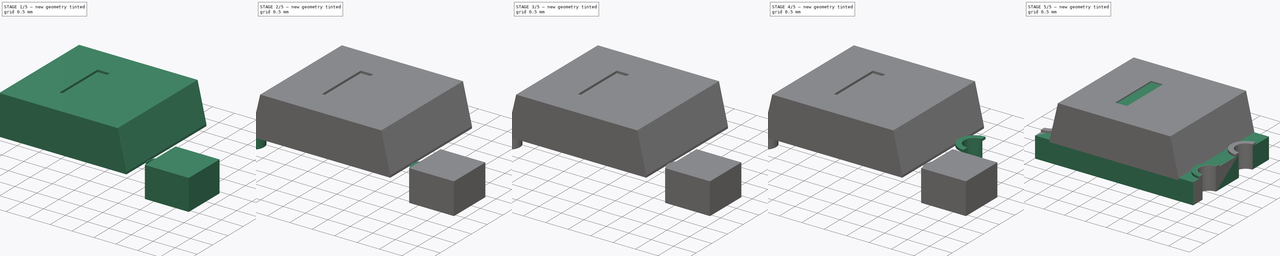
[diagram: build sequence overview — one tinted view per stage of 5, left to right]
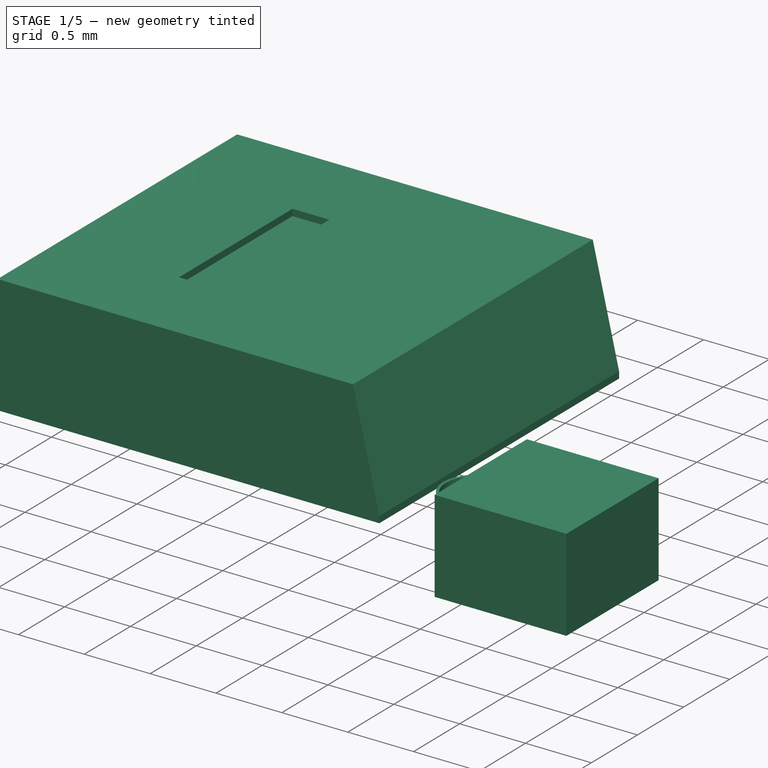
[diagram: stage 1 of 5 — iso view after this stage's code; geometry added in this stage tinted green]
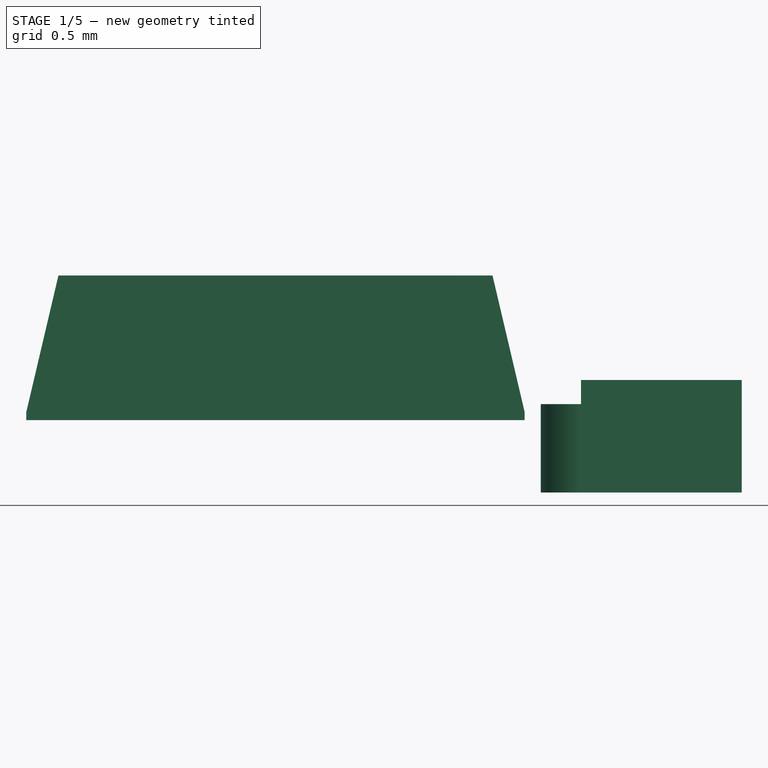
[diagram: stage 1 of 5 — front view after this stage's code; geometry added in this stage tinted green]
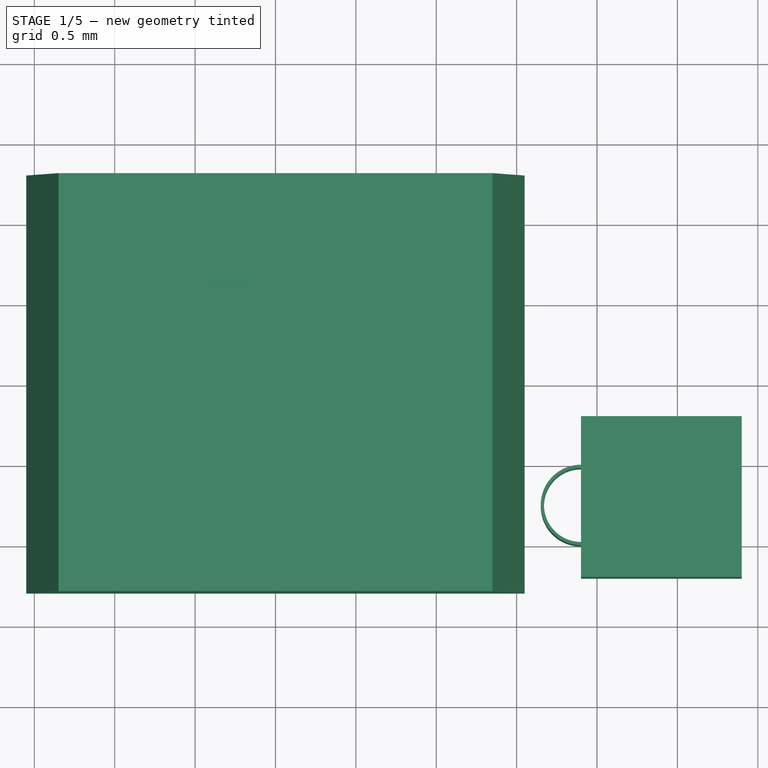
[diagram: stage 1 of 5 — top view after this stage's code; geometry added in this stage tinted green]
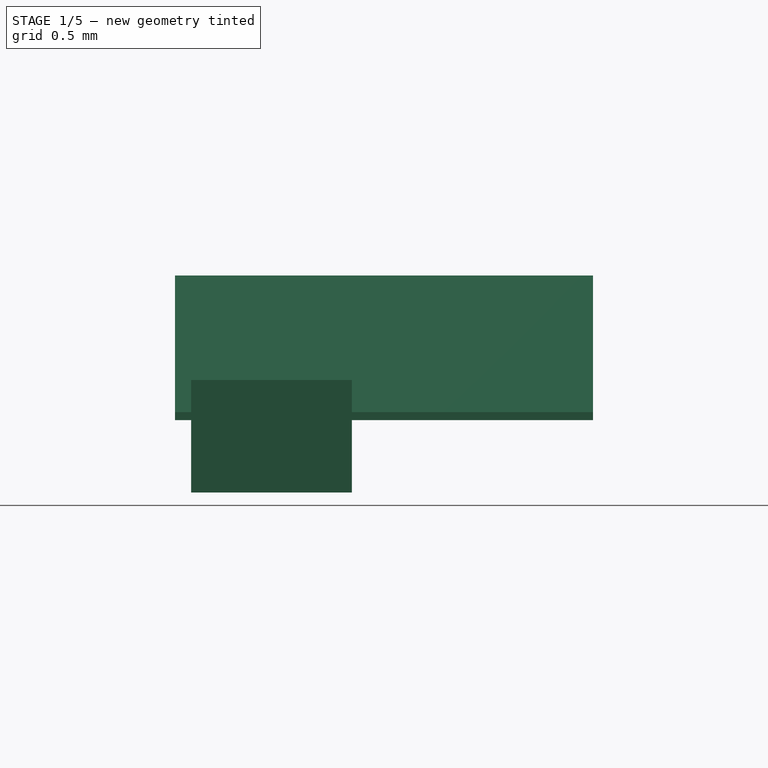
[diagram: stage 1 of 5 — right view after this stage's code; geometry added in this stage tinted green]
FCSTD DOCUMENT  (FreeCAD 0.17R11223 (Git))
Label: AmbientLightSensor_AMS_TSL2550_SMD_03
License: All rights reserved
LicenseURL: http://en.wikipedia.org/wiki/All_rights_reserved
objects: Part::Cylinder×16, Part::Cut×13, Part::Box×7, Part::MultiFuse×4, Part::Chamfer×2, Sketcher::SketchObject×1, PartDesign::Pad×1, PartDesign::Body×1
note: 46 computed .brp shape members not serialized (recipe doc carries the construction recipe); baked Part::Feature solids carry a one-line shape summary decoded from their .brp

FEATURE [PartDesign::Body] Body
  Group = -> [Sketch,Pad]
  Origin = -> BodyOrigin
  Tip = -> Pad
FEATURE [Part::Box] Box  label="Kub"
  AttacherType = Attacher::AttachEngine3D
  Height = 0.9
  Length = 3.1
  Placement = pos=(-1.55,-1.3,0.45) rot=(0,0,1;0rad)
  Width = 2.6
FEATURE [Part::Chamfer] Chamfer
  Base = -> Box
  Edges = 1 edges: [Edge6 r1=0.85 r2=0.2]
FEATURE [Part::Chamfer] Chamfer001
  Base = -> Chamfer
  Edges = 1 edges: [Edge15 r1=0.2 r2=0.85]
FEATURE [Part::Box] Box001  label="Kub001"
  AttacherType = Attacher::AttachEngine3D
  Height = 0.2
  Length = 0.28
  Placement = pos=(-0.44,-0.63,1.3) rot=(0,0,1;0rad)
  Width = 1.23
FEATURE [Part::Cylinder] Cylinder012
  Angle = 360
  AttacherType = Attacher::AttachEngine3D
  Height = 0.55
  Placement = pos=(1.9,-0.75,0) rot=(0,0,1;0rad)
  Radius = 0.25
FEATURE [Part::Cylinder] Cylinder013
  Angle = 360
  AttacherType = Attacher::AttachEngine3D
  Height = 0.55
  Placement = pos=(1.9,-0.75,0) rot=(0,0,1;0rad)
  Radius = 0.23
FEATURE [Part::Cut] Cut011
  Base = -> Cylinder012
  Tool = -> Cylinder013
FEATURE [Part::Box] Box006  label="Kub006"
  AttacherType = Attacher::AttachEngine3D
  Height = 0.7
  Length = 1
  Placement = pos=(1.9,-1.2,0) rot=(0,0,1;0rad)
  Width = 1
FEATURE [Part::Cut] Cut
  Base = -> Chamfer001
  Tool = -> Box001
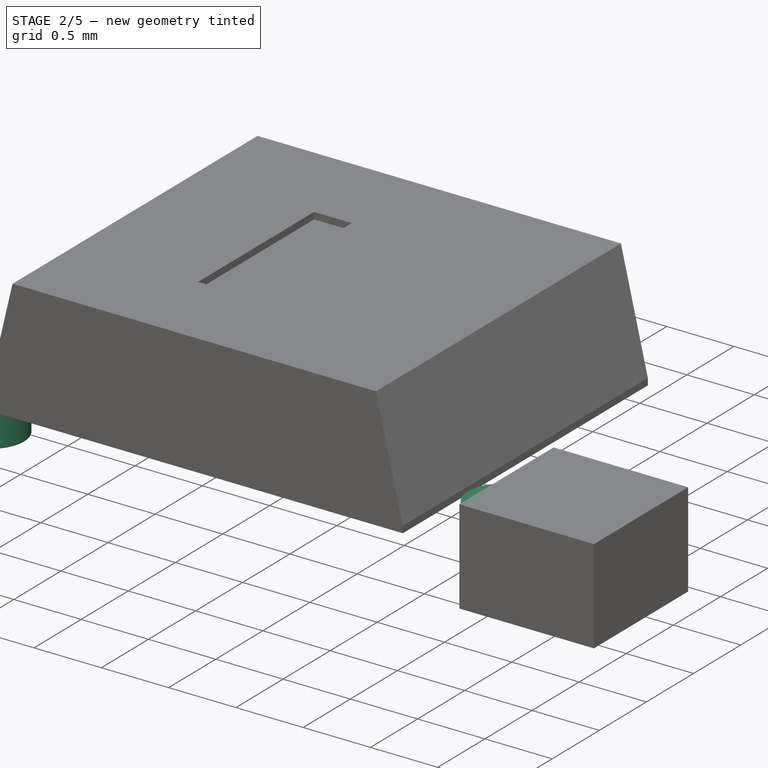
[diagram: stage 2 of 5 — iso view after this stage's code; geometry added in this stage tinted green]
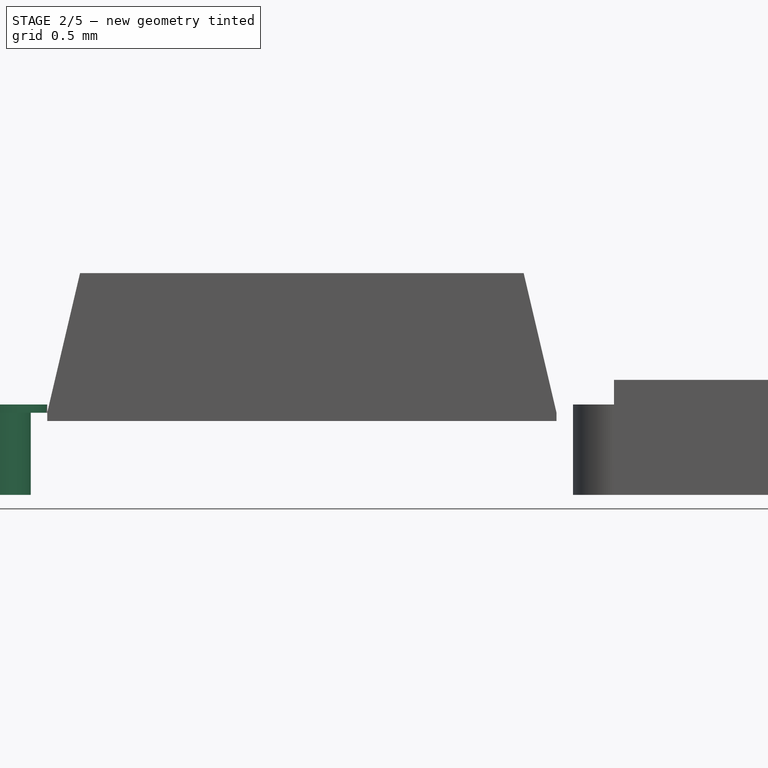
[diagram: stage 2 of 5 — front view after this stage's code; geometry added in this stage tinted green]
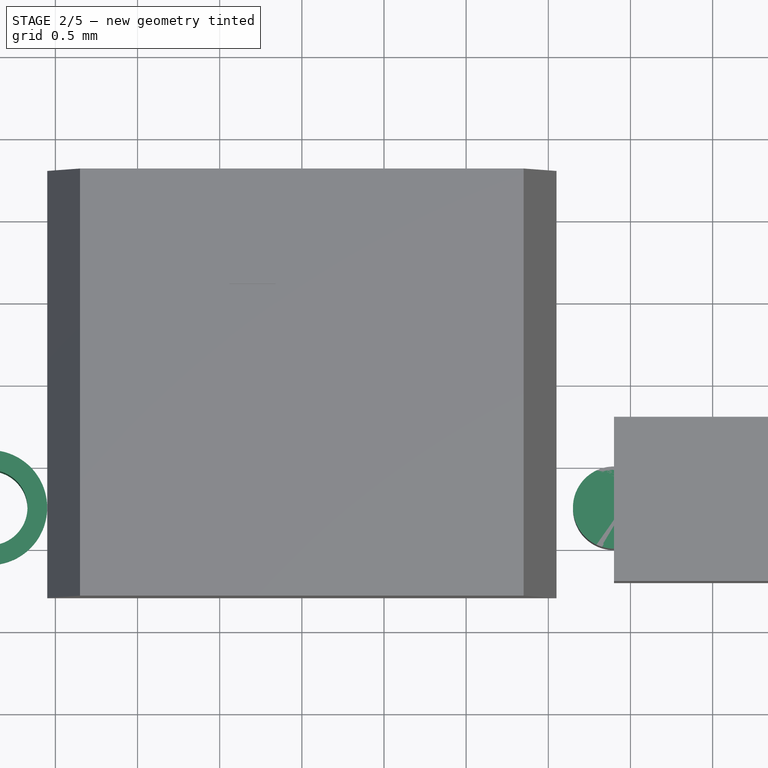
[diagram: stage 2 of 5 — top view after this stage's code; geometry added in this stage tinted green]
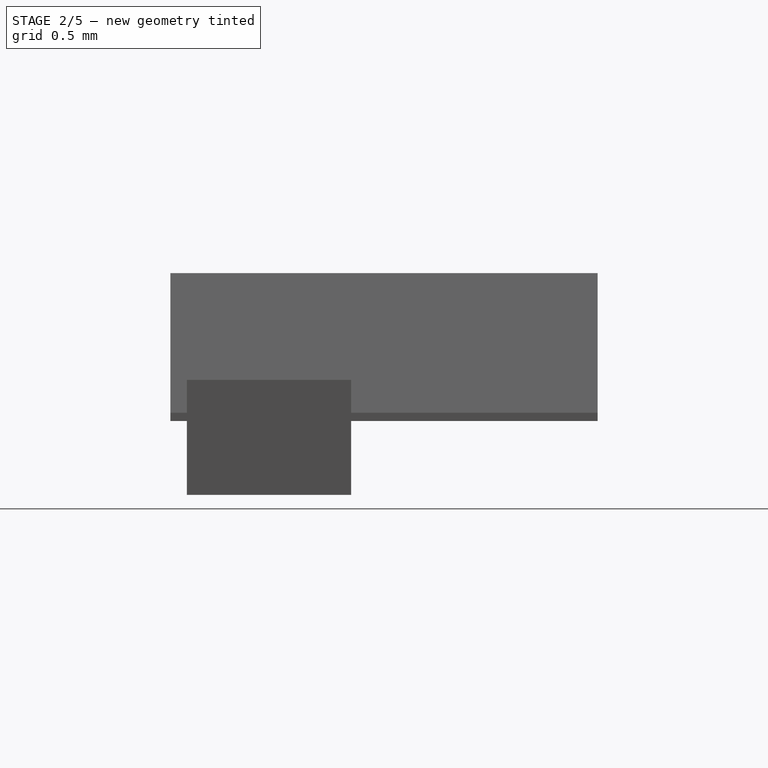
[diagram: stage 2 of 5 — right view after this stage's code; geometry added in this stage tinted green]
FEATURE [Part::Cylinder] Cylinder008
  Angle = 360
  AttacherType = Attacher::AttachEngine3D
  Height = 0.55
  Placement = pos=(1.9,-0.75,0) rot=(0,0,1;0rad)
  Radius = 0.25
FEATURE [Part::Cylinder] Cylinder009
  Angle = 360
  AttacherType = Attacher::AttachEngine3D
  Height = 0.55
  Placement = pos=(1.9,-0.75,0) rot=(0,0,1;0rad)
  Radius = 0.23
FEATURE [Part::Box] Box005  label="Kub005"
  AttacherType = Attacher::AttachEngine3D
  Height = 0.7
  Length = 1
  Placement = pos=(1.9,-1.2,0) rot=(0,0,1;0rad)
  Width = 1
FEATURE [Part::Cylinder] Cylinder014
  Angle = 360
  AttacherType = Attacher::AttachEngine3D
  Height = 0.05
  Placement = pos=(1.9,-0.75,0.5) rot=(0,0,1;0rad)
  Radius = 0.25
FEATURE [Part::Cylinder] Cylinder015
  Angle = 360
  AttacherType = Attacher::AttachEngine3D
  Height = 0.05
  Placement = pos=(1.9,-0.75,0.5) rot=(0,0,1;0rad)
  Radius = 0.35
FEATURE [Part::Cut] Cut010
  Base = -> Cylinder015
  Tool = -> Cylinder014
FEATURE [Part::MultiFuse] Fusion004
  Shapes = -> [Cut010,Cut011]
FEATURE [Part::Cut] Cut012  label="Pin004"
  Base = -> Fusion004
  Placement = pos=(0,-1.5,0) rot=(0,0,1;3.14159rad)
  Tool = -> Box006
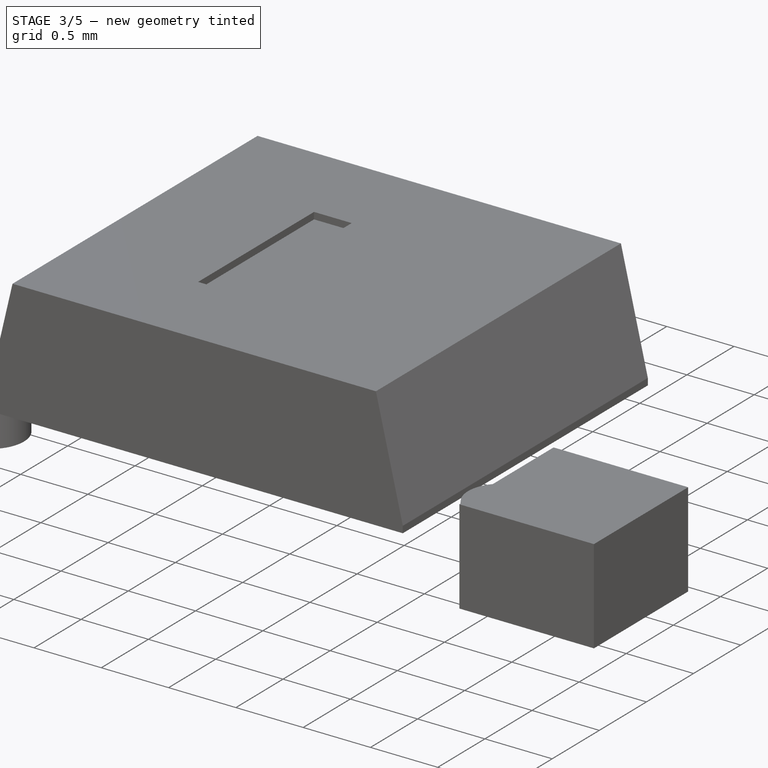
[diagram: stage 3 of 5 — iso view after this stage's code; geometry added in this stage tinted green]
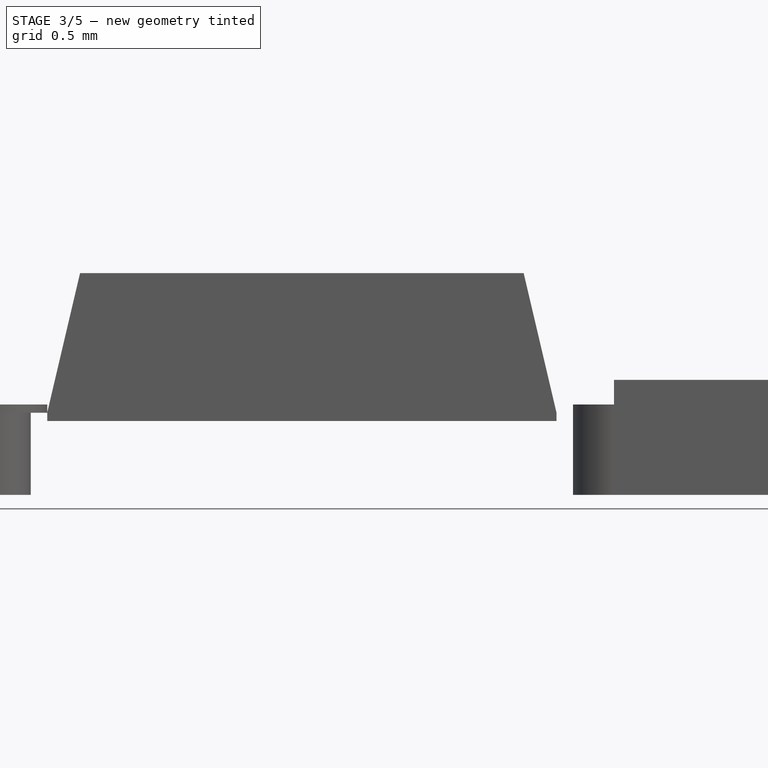
[diagram: stage 3 of 5 — front view after this stage's code; geometry added in this stage tinted green]
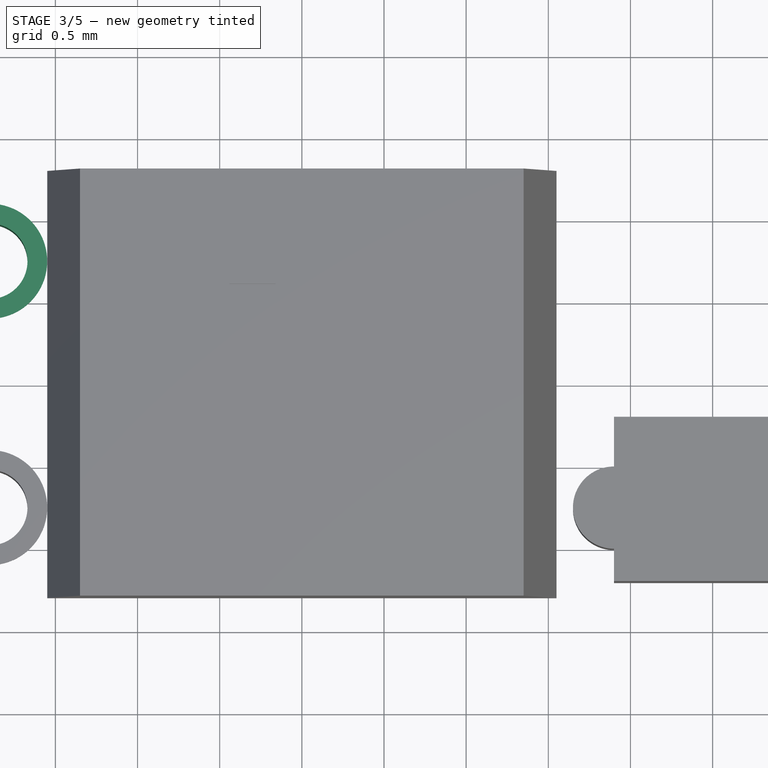
[diagram: stage 3 of 5 — top view after this stage's code; geometry added in this stage tinted green]
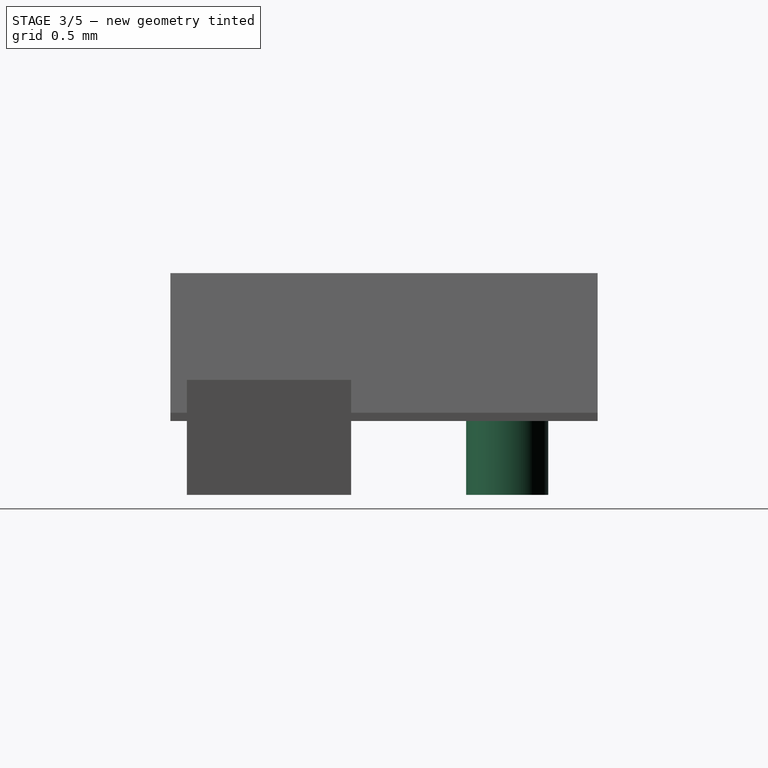
[diagram: stage 3 of 5 — right view after this stage's code; geometry added in this stage tinted green]
FEATURE [Part::Cylinder] Cylinder004
  Angle = 360
  AttacherType = Attacher::AttachEngine3D
  Height = 0.55
  Placement = pos=(1.9,-0.75,0) rot=(0,0,1;0rad)
  Radius = 0.25
FEATURE [Part::Cylinder] Cylinder005
  Angle = 360
  AttacherType = Attacher::AttachEngine3D
  Height = 0.55
  Placement = pos=(1.9,-0.75,0) rot=(0,0,1;0rad)
  Radius = 0.23
FEATURE [Part::Box] Box004  label="Kub004"
  AttacherType = Attacher::AttachEngine3D
  Height = 0.7
  Length = 1
  Placement = pos=(1.9,-1.2,0) rot=(0,0,1;0rad)
  Width = 1
FEATURE [Part::Cylinder] Cylinder010
  Angle = 360
  AttacherType = Attacher::AttachEngine3D
  Height = 0.05
  Placement = pos=(1.9,-0.75,0.5) rot=(0,0,1;0rad)
  Radius = 0.25
FEATURE [Part::Cylinder] Cylinder011
  Angle = 360
  AttacherType = Attacher::AttachEngine3D
  Height = 0.05
  Placement = pos=(1.9,-0.75,0.5) rot=(0,0,1;0rad)
  Radius = 0.35
FEATURE [Part::Cut] Cut007
  Base = -> Cylinder011
  Tool = -> Cylinder010
FEATURE [Part::Cut] Cut008
  Base = -> Cylinder008
  Tool = -> Cylinder009
FEATURE [Part::MultiFuse] Fusion003
  Shapes = -> [Cut007,Cut008]
FEATURE [Part::Cut] Cut009  label="Pin003"
  Base = -> Fusion003
  Placement = pos=(0,0,0) rot=(0,0,1;3.14159rad)
  Tool = -> Box005
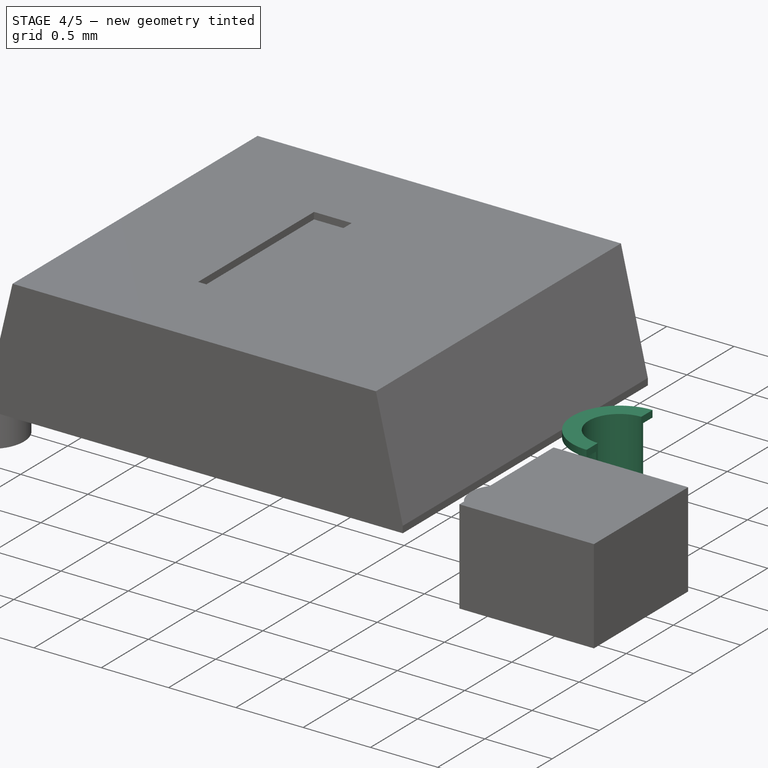
[diagram: stage 4 of 5 — iso view after this stage's code; geometry added in this stage tinted green]
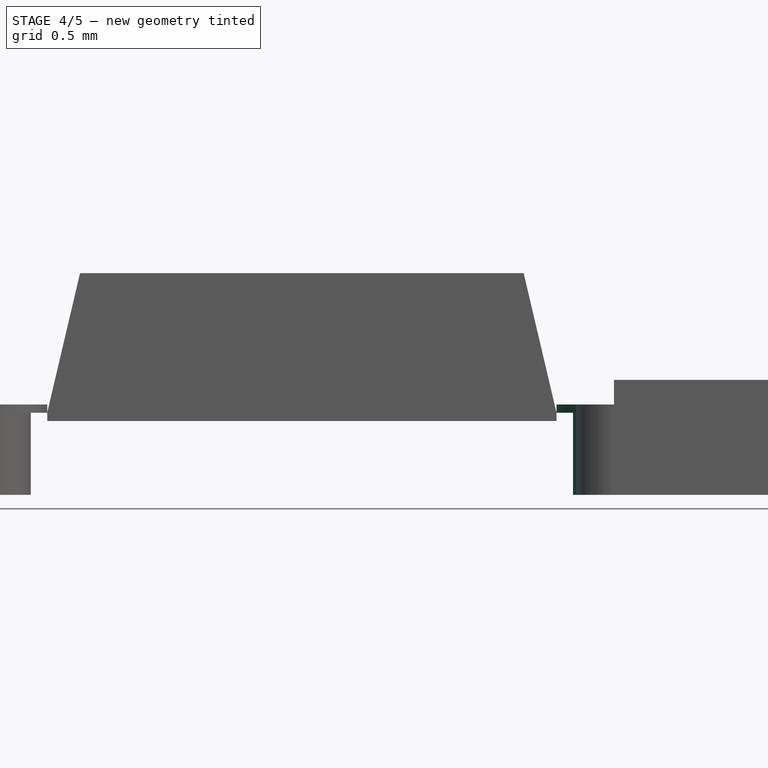
[diagram: stage 4 of 5 — front view after this stage's code; geometry added in this stage tinted green]
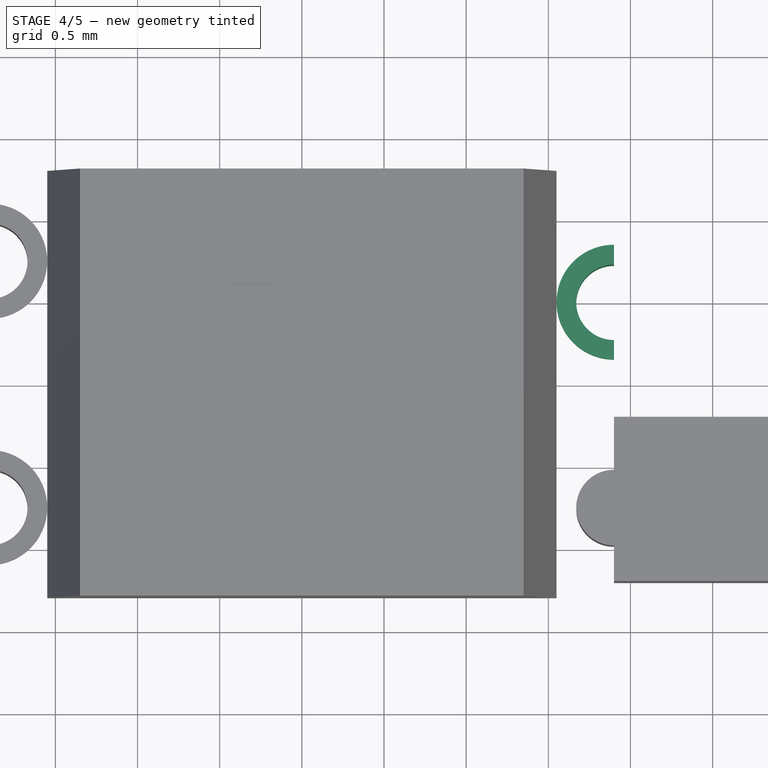
[diagram: stage 4 of 5 — top view after this stage's code; geometry added in this stage tinted green]
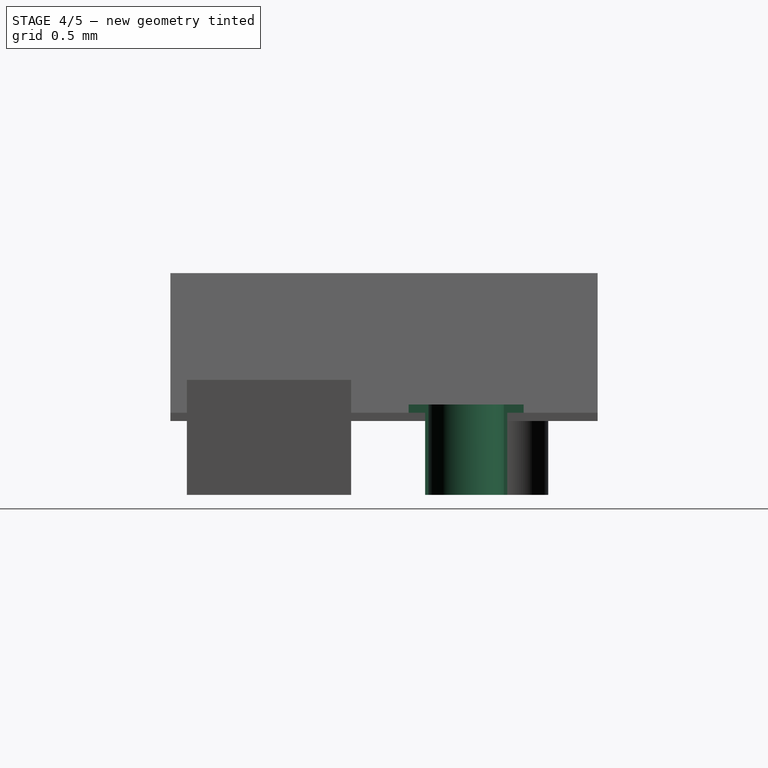
[diagram: stage 4 of 5 — right view after this stage's code; geometry added in this stage tinted green]
FEATURE [Part::Cylinder] Cylinder001
  Angle = 360
  AttacherType = Attacher::AttachEngine3D
  Height = 0.55
  Placement = pos=(1.9,-0.75,0) rot=(0,0,1;0rad)
  Radius = 0.23
FEATURE [Part::Box] Box003  label="Kub003"
  AttacherType = Attacher::AttachEngine3D
  Height = 0.7
  Length = 1
  Placement = pos=(1.9,-1.2,0) rot=(0,0,1;0rad)
  Width = 1
FEATURE [Part::Cylinder] Cylinder006
  Angle = 360
  AttacherType = Attacher::AttachEngine3D
  Height = 0.05
  Placement = pos=(1.9,-0.75,0.5) rot=(0,0,1;0rad)
  Radius = 0.25
FEATURE [Part::Cylinder] Cylinder007
  Angle = 360
  AttacherType = Attacher::AttachEngine3D
  Height = 0.05
  Placement = pos=(1.9,-0.75,0.5) rot=(0,0,1;0rad)
  Radius = 0.35
FEATURE [Part::Cut] Cut004
  Base = -> Cylinder007
  Tool = -> Cylinder006
FEATURE [Part::Cut] Cut005
  Base = -> Cylinder004
  Tool = -> Cylinder005
FEATURE [Part::MultiFuse] Fusion002
  Shapes = -> [Cut004,Cut005]
FEATURE [Part::Cut] Cut006  label="Pin002"
  Base = -> Fusion002
  Placement = pos=(0,1.25,0) rot=(0,0,1;0rad)
  Tool = -> Box004
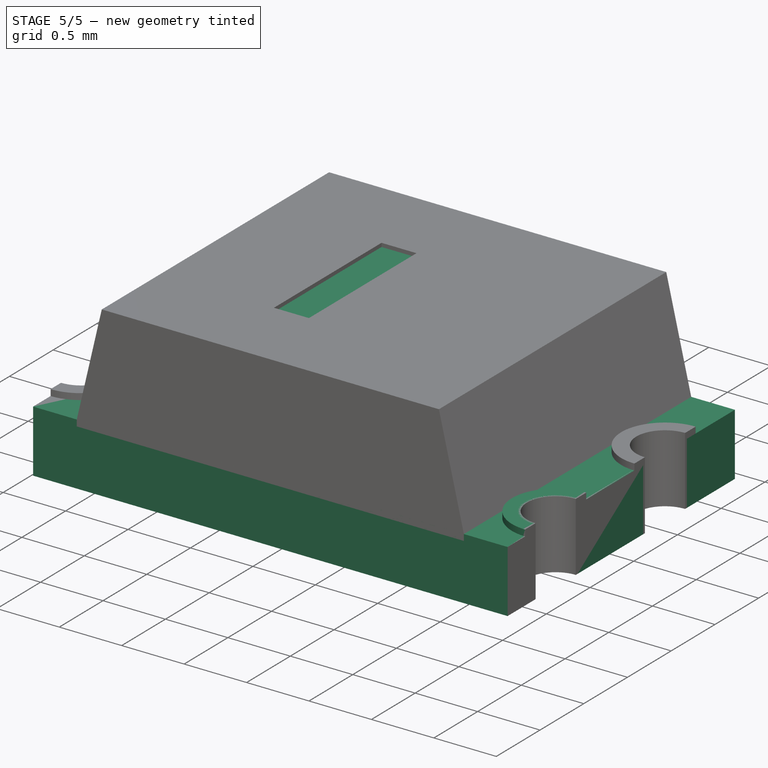
[diagram: stage 5 of 5 — iso view after this stage's code; geometry added in this stage tinted green]
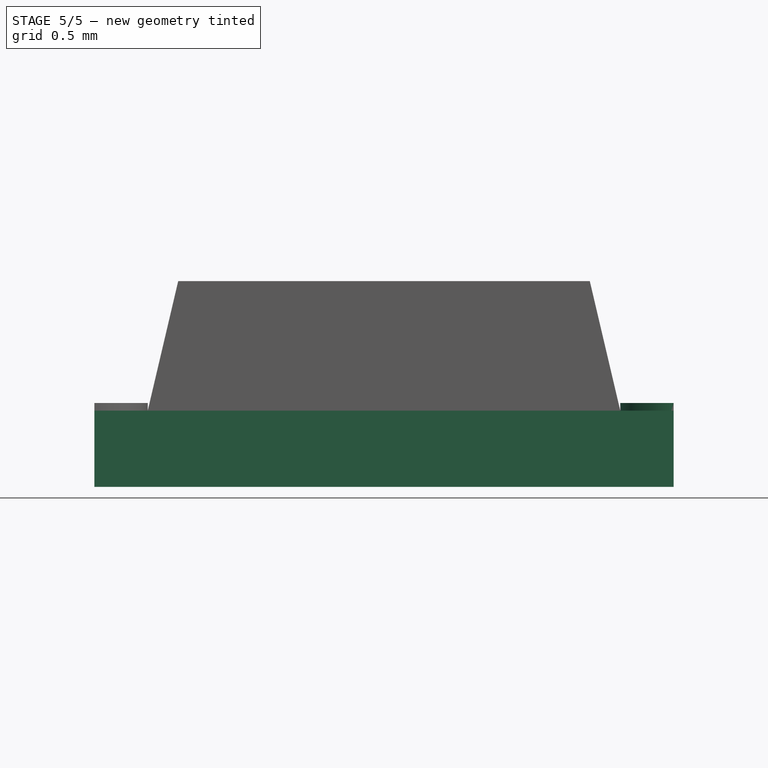
[diagram: stage 5 of 5 — front view after this stage's code; geometry added in this stage tinted green]
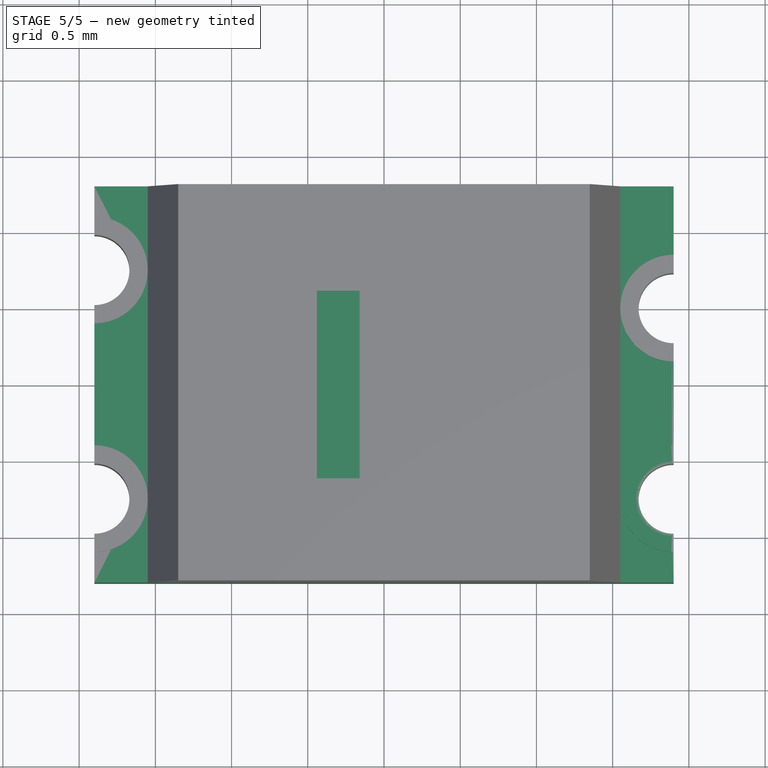
[diagram: stage 5 of 5 — top view after this stage's code; geometry added in this stage tinted green]
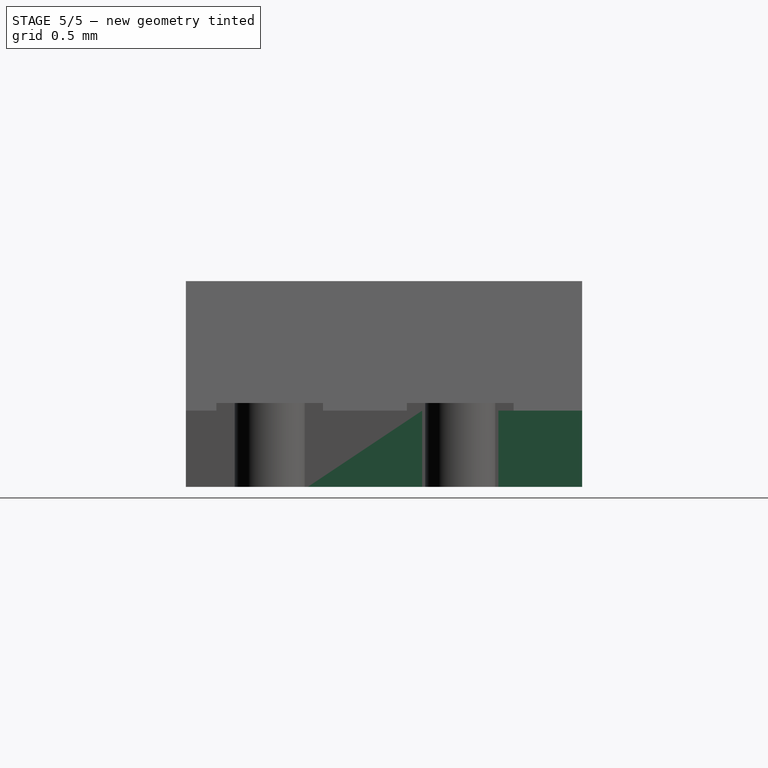
[diagram: stage 5 of 5 — right view after this stage's code; geometry added in this stage tinted green]
FEATURE [Sketcher::SketchObject] Sketch
  MapMode = 5
  Support = -> [XY_Plane]
  sketch-geometry (12):
    g0: LineSegment StartX=-1.9 StartY=1.3 StartZ=0 EndX=1.9 EndY=1.3 EndZ=0
    g1: LineSegment StartX=1.9 StartY=1.3 StartZ=0 EndX=1.9 EndY=0.75 EndZ=0
    g2: LineSegment StartX=-1.9 StartY=1.3 StartZ=0 EndX=-1.9 EndY=1 EndZ=0
    g3: LineSegment StartX=-1.9 StartY=0.5 StartZ=0 EndX=-1.9 EndY=-0.5 EndZ=0
    g4: LineSegment StartX=1.9 StartY=0.25 StartZ=0 EndX=1.9 EndY=-0.5 EndZ=0
    g5: LineSegment StartX=-1.9 StartY=-1 StartZ=0 EndX=-1.9 EndY=-1.3 EndZ=0
    g6: LineSegment StartX=-1.9 StartY=-1.3 StartZ=0 EndX=1.9 EndY=-1.3 EndZ=0
    g7: LineSegment StartX=1.9 StartY=-1.3 StartZ=0 EndX=1.9 EndY=-1 EndZ=0
    g8: ArcOfCircle CenterX=-1.9 CenterY=0.75 CenterZ=0 NormalX=0 NormalY=0 NormalZ=1 Radius=0.25 StartAngle=4.71239 EndAngle=7.85398
    g9: ArcOfCircle CenterX=-1.9 CenterY=-0.75 CenterZ=0 NormalX=0 NormalY=0 NormalZ=1 Radius=0.25 StartAngle=4.71239 EndAngle=7.85398
    g10: ArcOfCircle CenterX=1.9 CenterY=0.5 CenterZ=0 NormalX=0 NormalY=0 NormalZ=1 Radius=0.25 StartAngle=1.5708 EndAngle=4.71239
    g11: ArcOfCircle CenterX=1.9 CenterY=-0.75 CenterZ=0 NormalX=0 NormalY=0 NormalZ=1 Radius=0.25 StartAngle=1.5708 EndAngle=4.71239
  constraints (48):
    c: Horizontal(g0)
    c: Coincident(g0,g1)
    c: Vertical(g1)
    c: Coincident(g0,g2)
    c: Vertical(g2)
    c: Vertical(g3)
    c: Vertical(g4)
    c: Vertical(g5)
    c: Coincident(g5,g6)
    c: Horizontal(g6)
    c: Coincident(g6,g7)
    c: Vertical(g7)
    c: DistanceX(g10,g10) = 0
    c: DistanceX(g11,g11) = 0
    c: DistanceX(g8,g8) = 0
    c: DistanceX(g9,g9) = 0
    c: DistanceX(g2,g8) = 0
    c: DistanceX(g8,g3) = 0
    c: DistanceY(g3,g8) = 0
    c: DistanceX(g9,g3) = 0
    c: DistanceY(g9,g3) = 0
    c: DistanceX(g9,g5) = 0
    c: DistanceY(g5,g9) = 0
    c: DistanceX(g11,g7) = 0
    c: DistanceY(g7,g11) = 0
    c: DistanceX(g11,g7) = 0
    c: DistanceX(g10,g4) = 0
    c: DistanceY(g4,g10) = 0
    c: DistanceX(g10,g4) = 0
    c: DistanceX(g1,g10) = 0
    c: DistanceY(g10,g1) = 0
    c: DistanceX(g4,g11) = 0
    c: DistanceY(g11,g4) = 0
    c: DistanceY(g8,g2) = 0
    c: DistanceX(g8,g3) = 0
    c: DistanceX(g5,g9) = 0
    c: DistanceY(g5,g0) = 2.6
    c: DistanceY(g9,g8) = 1.5
    c: Radius(g8) = 0.25
    c: Radius(g9) = 0.25
    c: DistanceY(g8,g0) = 0.55
    c: Radius(g11) = 0.25
    c: Radius(g10) = 0.25
    c: DistanceY(g1,g1) = 0.55
    c: DistanceY(g6,g11) = 0.55
    c: DistanceX(g0,g0) = 3.8
    c: DistanceX(g0,g-1) = 1.9
    c: DistanceY(g-1,g0) = 1.3
FEATURE [PartDesign::Pad] Pad
  Length = 0.5
  Length2 = 100
  Profile = -> Sketch
  Type = 0
FEATURE [Part::Box] Box002  label="Kub002"
  AttacherType = Attacher::AttachEngine3D
  Height = 0.2
  Length = 0.28
  Placement = pos=(-0.44,-0.63,1.12) rot=(0,0,1;0rad)
  Width = 1.23
FEATURE [Part::Cylinder] Cylinder
  Angle = 360
  AttacherType = Attacher::AttachEngine3D
  Height = 0.55
  Placement = pos=(1.9,-0.75,0) rot=(0,0,1;0rad)
  Radius = 0.25
FEATURE [Part::Cylinder] Cylinder002
  Angle = 360
  AttacherType = Attacher::AttachEngine3D
  Height = 0.05
  Placement = pos=(1.9,-0.75,0.5) rot=(0,0,1;0rad)
  Radius = 0.25
FEATURE [Part::Cylinder] Cylinder003
  Angle = 360
  AttacherType = Attacher::AttachEngine3D
  Height = 0.05
  Placement = pos=(1.9,-0.75,0.5) rot=(0,0,1;0rad)
  Radius = 0.35
FEATURE [Part::Cut] Cut001
  Base = -> Cylinder003
  Tool = -> Cylinder002
FEATURE [Part::Cut] Cut002
  Base = -> Cylinder
  Tool = -> Cylinder001
FEATURE [Part::MultiFuse] Fusion001
  Shapes = -> [Cut001,Cut002]
FEATURE [Part::Cut] Cut003  label="Pin001"
  Base = -> Fusion001
  Tool = -> Box003
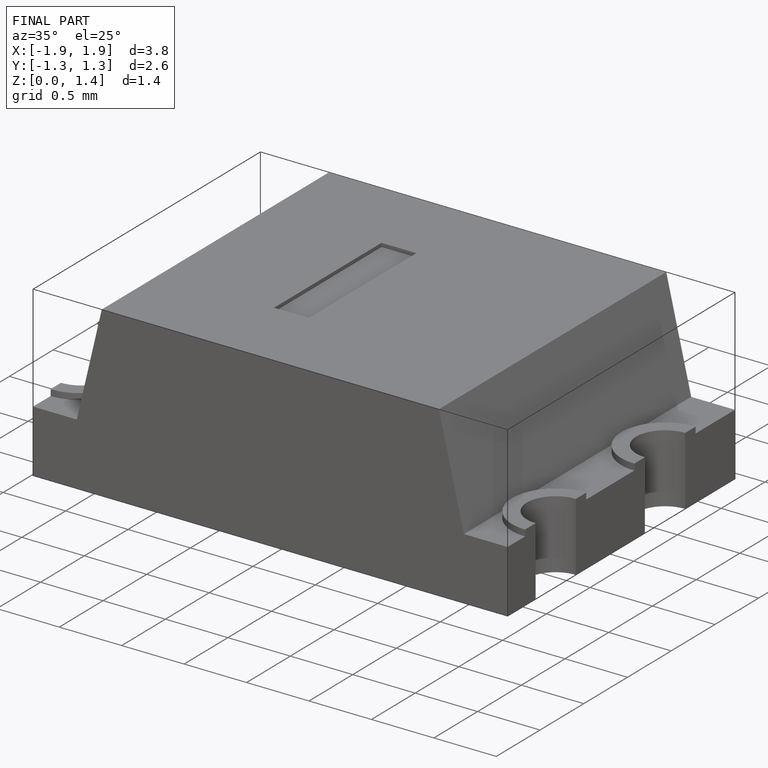
[diagram: finished part — iso view with bounding-box wireframe]
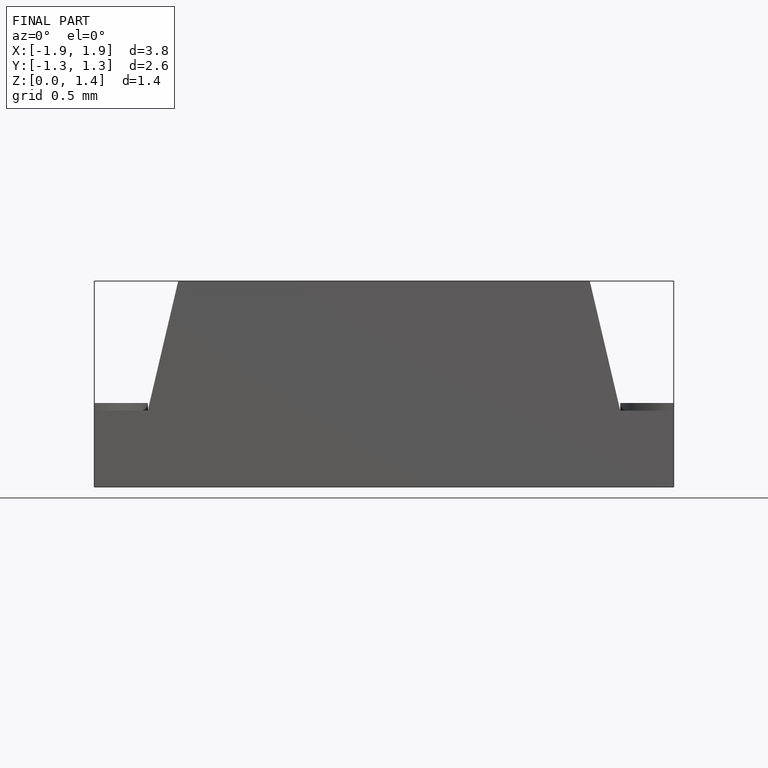
[diagram: finished part — front view with bounding-box wireframe]
